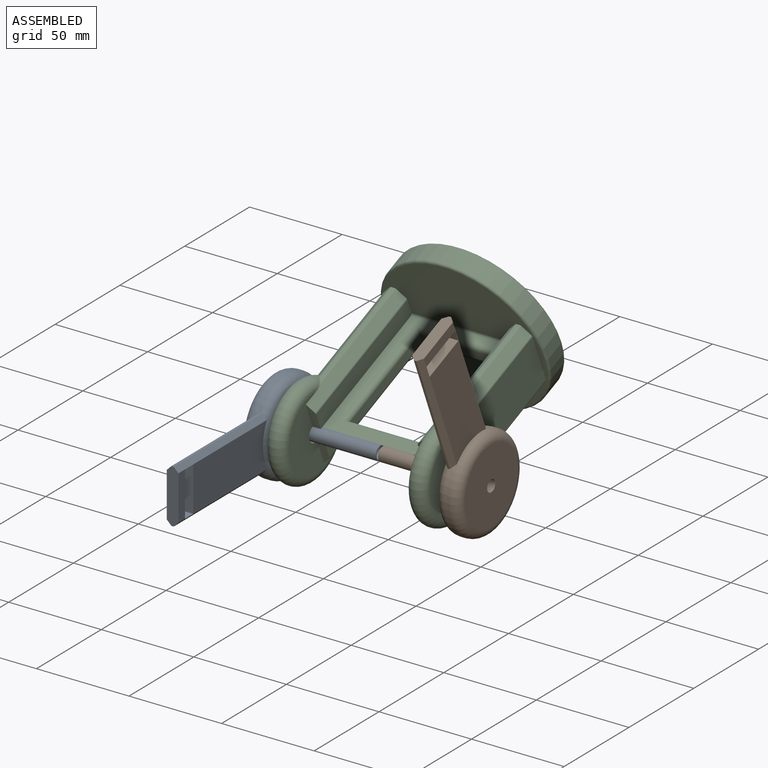
[diagram: assembled view]
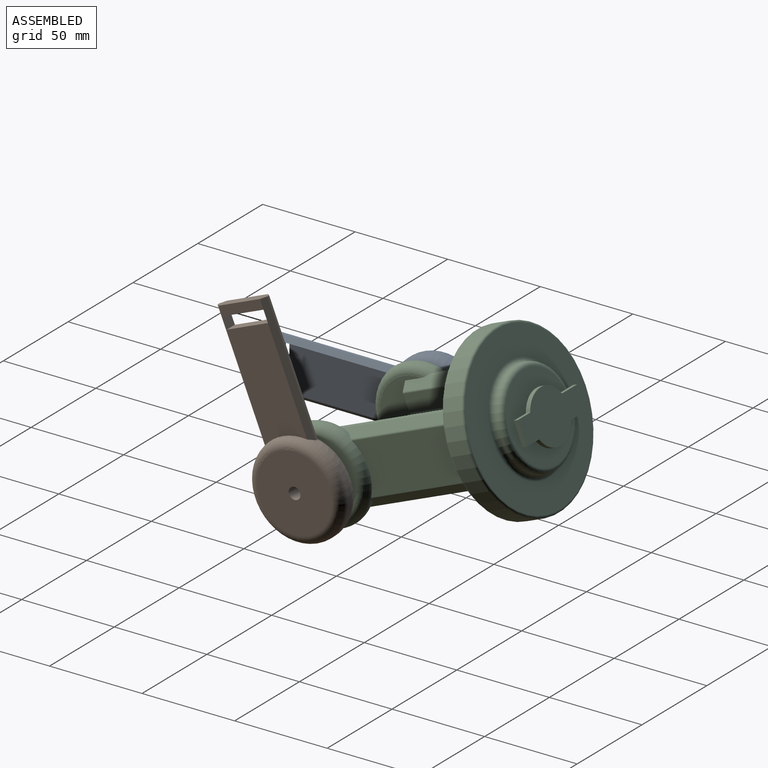
[diagram: assembled view, second angle]
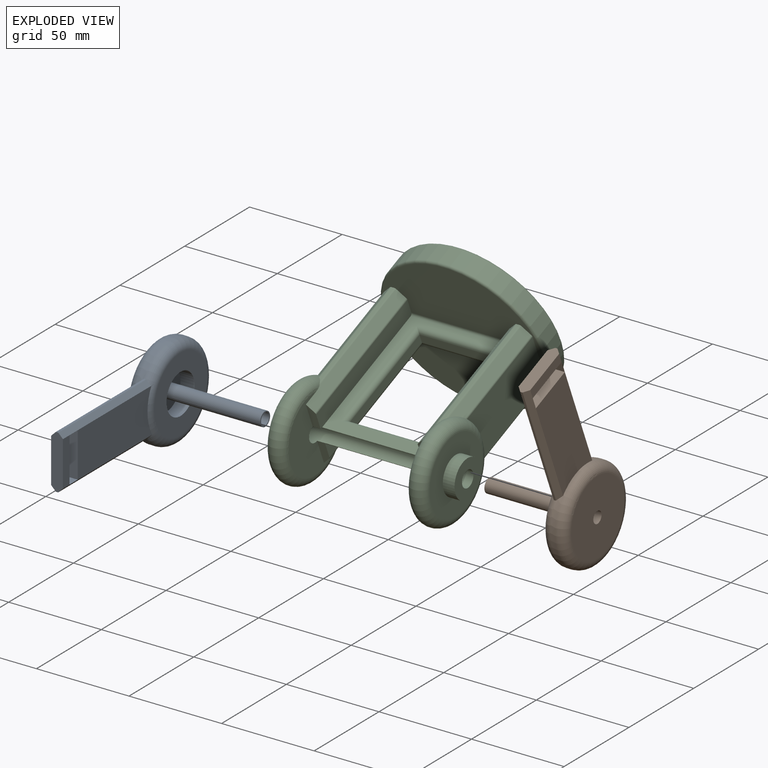
[diagram: exploded view]
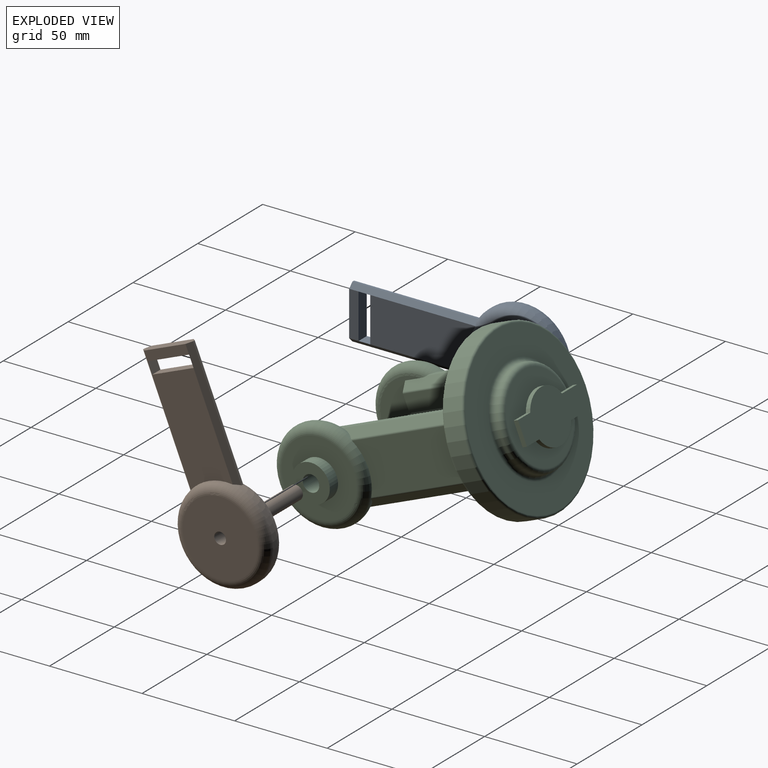
[diagram: exploded view, second angle]
ASSEMBLY  parts=3 mates=2
PART A: 25 faces, bbox 55x58.5x116.5 mm
  f0: plane 57.42x24.13mm, normal (0,-1,0), area 1323.9mm2, adj f3,f19,f20,f21
  f1: plane 55.42x24.13mm, normal (0,1,0), area 1280.5mm2, adj f10,f17,f18,f21
  f2: cylinder r=25.4mm len=50.8mm, axis (0,1,0), area 333.9mm2, adj f3,f10,f17,f18
  f3: torus R=20.32mm, axis (0,-1,0), area 1056.2mm2, adj f0,f2,f4,f11,f12,f19,f20
  f4: plane 40.64x40.64mm, normal (0,-1,0), area 931.1mm2, adj f3,f6
  f5: plane 40.64x40.64mm, normal (0,1,0), area 1265.5mm2, adj f10,f16
  f6: cylinder r=10.79mm len=21.59mm, axis (0,-1,0), area 516.8mm2, adj f4,f7
  f7: plane 21.59x21.59mm, normal (0,-1,0), area 320.5mm2, adj f6,f8
  f8: cylinder r=3.81mm len=53.34mm, axis (0,1,0), area 1276.9mm2, adj f7,f9
  f9: plane 7.62x7.62mm, normal (0,-1,0), area 13.9mm2, adj f8,f16
  f10: torus R=20.32mm, axis (0,-1,0), area 1180.9mm2, adj f1,f2,f5
  f11: plane 68x1.33mm, normal (-1,0,0), area 86.1mm2, adj f3,f15,f18,f19
  f12: plane 68.77x1.34mm, normal (1,0,0), area 87.1mm2, adj f3,f15,f17,f20
  f13: plane 24.13x5.08mm, normal (0,-1,0), area 122.6mm2, adj f15,f19,f20,f22
  f14: plane 24.13x5.08mm, normal (0,1,0), area 122.6mm2, adj f15,f17,f18,f22
  f15: plane 29.21x6.35mm, normal (0,0,-1), area 172.6mm2, adj f11,f12,f13,f14,f17,f18,f19,f20
  f16: cylinder r=3.17mm len=58.42mm, axis (0,1,0), area 1165.4mm2, adj f5,f9
  f17: plane 68.56x2.59mm, normal (0.71,0.71,0), area 243mm2, adj f1,f2,f12,f14,f15,f24
  f18: plane 67.79x2.58mm, normal (-0.71,0.71,0), area 240.6mm2, adj f1,f2,f11,f14,f15,f23
  f19: plane 68.22x2.54mm, normal (-0.71,-0.71,0), area 243.8mm2, adj f0,f3,f11,f13,f15,f23
  f20: plane 68.85x2.54mm, normal (0.71,-0.71,0), area 246.2mm2, adj f0,f3,f12,f13,f15,f24
  f21: plane 24.13x6.35mm, normal (0,0,-1), area 153.2mm2, adj f0,f1,f23,f24
  f22: plane 24.13x6.35mm, normal (0,0,1), area 153.2mm2, adj f13,f14,f23,f24
  f23: plane 6.35x6.35mm, normal (1,0,0), area 40.3mm2, adj f18,f19,f21,f22
  f24: plane 6.35x6.35mm, normal (-1,0,0), area 40.3mm2, adj f17,f20,f21,f22
PART B: same geometry as A
PART C: 94 faces, bbox 100x97.1x130 mm
  f0: plane 13.81x4.29mm, normal (0,0,1), area 50mm2, adj f8,f29,f37,f56,f75
  f1: plane 14.61x6.83mm, normal (0,0,1), area 86.8mm2, adj f14,f24,f31,f38,f39,f48,f75
  f2: plane 14.61x6.83mm, normal (0,0,1), area 86.8mm2, adj f15,f26,f30,f40,f41,f48,f75
  f3: plane 73.66x54.92mm, normal (0,-1,0), area 1303.6mm2, adj f24,f29,f44,f46,f63,f64,f65,f66
  f4: plane 73.66x54.92mm, normal (0,1,0), area 1303.6mm2, adj f26,f27,f43,f45,f67,f68,f69,f70
  f5: plane 62.23x1.67mm, normal (0,1,0), area 90.8mm2, adj f12,f13,f22,f58
  f6: plane 63.64x2.41mm, normal (0,-1,0), area 123.7mm2, adj f8,f11,f22,f58
  f7: plane 76.67x4.81mm, normal (0.71,0.71,0), area 460.5mm2, adj f12,f16,f22,f42,f56,f58
  f8: plane 77.11x5.61mm, normal (0.71,-0.71,0), area 494mm2, adj f0,f6,f22,f37,f56,f58
  f9: cylinder r=1.27mm len=56.4mm, axis (0,0,-1), area 56.1mm2, adj f22,f28,f32,f58
  f10: cylinder r=1.27mm len=56.4mm, axis (0,0,-1), area 56.1mm2, adj f22,f28,f33,f58
  f11: cylinder r=1.27mm len=60.22mm, axis (0,0,1), area 59.6mm2, adj f6,f22,f32,f58
  f12: cylinder r=1.27mm len=63.94mm, axis (0,0,-1), area 62.8mm2, adj f5,f7,f22,f58
  f13: cylinder r=1.27mm len=60.22mm, axis (0,0,-1), area 59.6mm2, adj f5,f22,f33,f58
  f14: plane 76.41x1.7mm, normal (0,-1,0), area 110.8mm2, adj f1,f19,f22,f39,f48,f55
  f15: plane 76.41x1.7mm, normal (0,1,0), area 110.8mm2, adj f2,f20,f22,f40,f48,f55
  f16: plane 13.81x4.29mm, normal (0,0,1), area 50mm2, adj f7,f27,f42,f56,f75
  f17: cylinder r=1.27mm len=55.24mm, axis (0,0,-1), area 54.8mm2, adj f22,f25,f34,f52
  f18: cylinder r=1.27mm len=55.24mm, axis (0,0,1), area 54.8mm2, adj f22,f25,f35,f51
  f19: cylinder r=1.27mm len=65.32mm, axis (0,0,1), area 63.4mm2, adj f14,f22,f34,f55
  f20: cylinder r=1.27mm len=65.32mm, axis (0,0,-1), area 63.4mm2, adj f15,f22,f35,f55
  f21: cylinder r=44.45mm len=88.9mm, axis (0,0,-1), area 2837.6mm2, adj f36,f47
  f22: plane 86.36x86.36mm, normal (0,0,1), area 4318.8mm2, adj f5,f6,f7,f8,f9,f10,f11,f12
  f23: plane 86.36x86.36mm, normal (0,0,-1), area 3405.1mm2, adj f47,f78
  f24: plane 76.2x9mm, normal (-1,0,0), area 607.6mm2, adj f1,f3,f22,f38,f44,f46,f75
  f25: plane 54.65x26.89mm, normal (1,0,0), area 1399.3mm2, adj f17,f18,f22,f50
  f26: plane 76.2x9.17mm, normal (-1,0,0), area 698.2mm2, adj f2,f4,f22,f41,f43,f45,f75
  f27: plane 76.2x9.17mm, normal (1,0,0), area 698.2mm2, adj f4,f16,f22,f42,f43,f45,f75
  f28: plane 56.13x26.89mm, normal (-1,0,0), area 1434.7mm2, adj f9,f10,f22,f58
  f29: plane 76.2x9mm, normal (1,0,0), area 607.6mm2, adj f0,f3,f22,f37,f44,f46,f75
  f30: plane 76.2x4.34mm, normal (-0.71,0.71,0), area 467.3mm2, adj f2,f22,f40,f41
  f31: plane 76.2x4.34mm, normal (-0.71,-0.71,0), area 467.3mm2, adj f1,f22,f38,f39
  f32: plane 59.69x4.76mm, normal (-0.71,-0.71,0), area 351.1mm2, adj f9,f11,f22,f58
  f33: plane 59.69x4.76mm, normal (-0.71,0.71,0), area 351.1mm2, adj f10,f13,f22,f58
  f34: plane 62.41x4.89mm, normal (0.71,-0.71,0), area 353.8mm2, adj f17,f19,f22,f54,f55
  f35: plane 62.4x4.89mm, normal (0.71,0.71,0), area 353.8mm2, adj f18,f20,f22,f53,f55
  f36: torus R=43.18mm, axis (0,0,1), area 551.4mm2, adj f21,f22
  f37: cylinder r=1.27mm len=76.2mm, axis (0,0,1), area 76mm2, adj f0,f8,f22,f29
  f38: cylinder r=1.27mm len=76.2mm, axis (0,0,1), area 76mm2, adj f1,f22,f24,f31
  f39: cylinder r=1.27mm len=76.2mm, axis (0,0,1), area 76mm2, adj f1,f14,f22,f31
  f40: cylinder r=1.27mm len=76.2mm, axis (0,0,-1), area 76mm2, adj f2,f15,f22,f30
  f41: cylinder r=1.27mm len=76.2mm, axis (0,0,-1), area 76mm2, adj f2,f22,f26,f30
  f42: cylinder r=1.27mm len=76.2mm, axis (0,0,1), area 76mm2, adj f7,f16,f22,f27
  f43: cylinder r=1.27mm len=54.92mm, axis (-1,0,0), area 109.6mm2, adj f4,f22,f26,f27
  f44: cylinder r=1.27mm len=54.92mm, axis (1,0,0), area 109.6mm2, adj f3,f22,f24,f29
  f45: cylinder r=1.27mm len=54.92mm, axis (1,0,0), area 2.7mm2, adj f4,f26,f27,f75
  f46: cylinder r=1.27mm len=54.92mm, axis (-1,0,0), area 96mm2, adj f3,f24,f29,f75
  f47: torus R=43.18mm, axis (0,0,1), area 551.4mm2, adj f21,f23
  f48: plane 40.64x27.39mm, normal (-1,0,0), area 629.6mm2, adj f1,f2,f14,f15,f55,f75
  f49: plane 40.7x40.64mm, normal (1,0,0), area 974.4mm2, adj f50,f51,f52,f53,f54,f55,f73
  f50: torus R=20.38mm, axis (-1,0,0), area 187.7mm2, adj f25,f49,f51,f52
  f51: bspline ~4.79x4.78mm, area 6.2mm2, adj f18,f49,f50,f53
  f52: bspline ~4.78x4.73mm, area 6.2mm2, adj f17,f49,f50,f54
  f53: bspline ~5.08x4.43mm, area 4.7mm2, adj f35,f49,f51,f55
  f54: bspline ~6.06x5.59mm, area 4.7mm2, adj f34,f49,f52,f55
  f55: torus R=20.32mm, axis (1,0,0), area 1796.9mm2, adj f14,f15,f19,f20,f34,f35,f48,f49
  f56: plane 40.64x29.24mm, normal (1,0,0), area 642.3mm2, adj f0,f7,f8,f16,f58,f75
  f57: plane 40.64x40.64mm, normal (-1,0,0), area 972.9mm2, adj f58,f71
  f58: torus R=20.32mm, axis (1,0,0), area 1890.7mm2, adj f5,f6,f7,f8,f9,f10,f11,f12
  f59: plane 38.1x4.67mm, normal (0,0,-1), area 177.7mm2, adj f60,f62,f66,f67
  f60: plane 58.42x4.67mm, normal (-1,0,0), area 272.5mm2, adj f59,f61,f65,f68
  f61: plane 38.1x4.67mm, normal (0,0,1), area 177.7mm2, adj f60,f62,f63,f70
  f62: plane 58.42x4.67mm, normal (1,0,0), area 272.5mm2, adj f59,f61,f64,f69
  f63: cylinder r=2.54mm len=43.18mm, axis (-1,0,0), area 162.1mm2, adj f3,f61,f64,f65
  f64: cylinder r=2.54mm len=63.5mm, axis (0,0,1), area 243.2mm2, adj f3,f62,f63,f66
  f65: cylinder r=2.54mm len=63.5mm, axis (0,0,-1), area 243.2mm2, adj f3,f60,f63,f66
  f66: cylinder r=2.54mm len=43.18mm, axis (1,0,0), area 162.1mm2, adj f3,f59,f64,f65
  f67: cylinder r=2.54mm len=43.18mm, axis (1,0,0), area 162.1mm2, adj f4,f59,f68,f69
  f68: cylinder r=2.54mm len=63.5mm, axis (0,0,-1), area 243.2mm2, adj f4,f60,f67,f70
  f69: cylinder r=2.54mm len=63.5mm, axis (0,0,1), area 243.2mm2, adj f4,f62,f67,f70
  f70: cylinder r=2.54mm len=43.18mm, axis (-1,0,0), area 162.1mm2, adj f4,f61,f68,f69
  f71: cylinder r=10.16mm len=20.32mm, axis (1,0,0), area 405.4mm2, adj f57,f72
  f72: plane 20.32x20.32mm, normal (-1,0,0), area 262.2mm2, adj f71,f75
  f73: cylinder r=10.16mm len=20.32mm, axis (-1,0,0), area 405.4mm2, adj f49,f74
  f74: plane 20.32x20.32mm, normal (1,0,0), area 262.2mm2, adj f73,f75
  f75: cylinder r=4.45mm len=99.06mm, axis (1,0,0), area 1775.2mm2, adj f0,f1,f2,f16,f24,f26,f27,f29
  f76: cylinder r=25.4mm len=50.8mm, axis (0,0,1), area 202.7mm2, adj f78,f79
  f77: plane 45.72x45.72mm, normal (0,0,-1), area 1486.9mm2, adj f79,f80,f81,f82,f83
  f78: torus R=27.94mm, axis (0,0,1), area 659.9mm2, adj f23,f76
  f79: torus R=22.86mm, axis (0,0,1), area 613.6mm2, adj f76,f77
  f80: plane 10.16x3.81mm, normal (-1,0,0), area 38.7mm2, adj f77,f81,f83,f93
  f81: plane 15.24x3.81mm, normal (0,1,0), area 58.1mm2, adj f77,f80,f82,f93
  f82: plane 10.16x3.81mm, normal (1,0,0), area 38.7mm2, adj f77,f81,f83,f93
  f83: plane 15.24x3.81mm, normal (0,-1,0), area 58.1mm2, adj f77,f80,f82,f93
  f84: plane 12.7x2.54mm, normal (-1,0,0), area 32.3mm2, adj f85,f91,f92,f93
  f85: plane 11.77x2.54mm, normal (0,1,0), area 29.9mm2, adj f84,f86,f92,f93
  f86: cylinder r=13.67mm len=24.52mm, axis (0,0,1), area 77.3mm2, adj f85,f87,f92,f93
  f87: plane 9.43x2.54mm, normal (0,1,0), area 23.9mm2, adj f86,f88,f92,f93
  f88: plane 12.7x2.54mm, normal (1,0,0), area 32.3mm2, adj f87,f89,f92,f93
  f89: plane 9.43x2.54mm, normal (0,-1,0), area 23.9mm2, adj f88,f90,f92,f93
  f90: cylinder r=13.67mm len=24.52mm, axis (0,0,1), area 77.3mm2, adj f89,f91,f92,f93
  f91: plane 11.77x2.54mm, normal (0,-1,0), area 29.9mm2, adj f84,f90,f92,f93
  f92: plane 45.72x27.94mm, normal (0,0,-1), area 848.1mm2, adj f84,f85,f86,f87,f88,f89,f90,f91
  f93: plane 45.72x27.94mm, normal (0,0,1), area 693.3mm2, adj f80,f81,f82,f83,f84,f85,f86,f87
PLACE A rot(axis=(-0.58,0.58,0.58),120deg) t=(-77.2,-229.01,122.92)mm
PLACE B rot(axis=(-0.7,-0.7,-0.14),164.2deg) t=(40.91,-229.01,122.92)mm
PLACE C rot(axis=(1,0,0),112.4deg) t=(-22.59,-146.84,156.87)mm
MATE revolute C.f50 <-> B.f6  axis (1,0,0) through (28.21,-229.01,122.92)mm
MATE revolute A.f6 <-> C.f50  axis (1,0,0) through (-64.5,-229.01,122.92)mm
